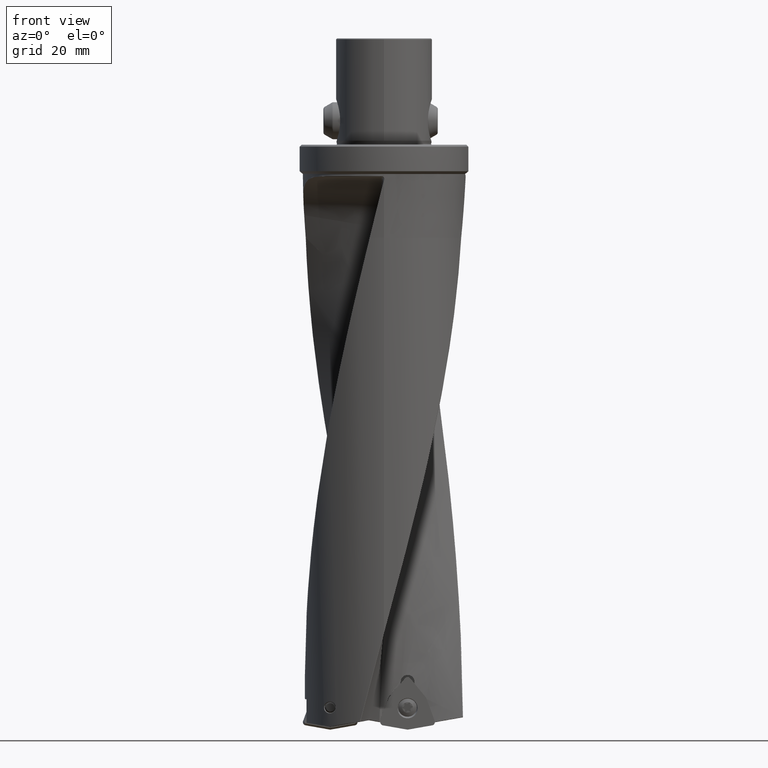
[diagram: clean part render]
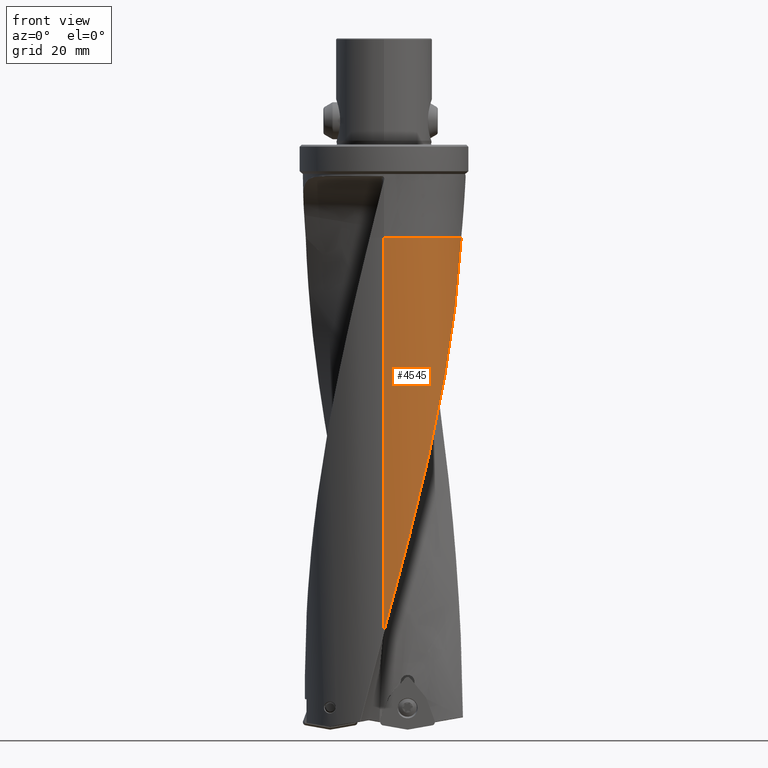
[diagram: same view with one face highlighted and labeled with its STEP entity id]
A machine part, front view. The second image highlights one B-rep face of the part: STEP entity #4545.
In plain terms, the highlighted cylindrical surface (partial cylindrical patch) has radius 29.7375 mm, axis along (-0, -0, 1).
Its self-contained STEP definition (entity closure, byte-faithful):
#2795=VERTEX_POINT('',#6438);
#3581=EDGE_CURVE('',#5069,#2795,#7304,.T.);
#3627=VERTEX_POINT('NONE',#7354);
#3789=EDGE_CURVE('NONE',#2795,#3627,#7536,.F.);
#4545=ADVANCED_FACE('NONE',(#8384),#8385,.T.);
#4779=EDGE_CURVE('NONE',#3627,#5069,#8638,.T.);
#5069=VERTEX_POINT('',#8953);
#6438=CARTESIAN_POINT('',(-2.07640241021142E-013,-29.7375,-182.909381658878));
#7304=LINE('',#34133,#34134);
#7354=CARTESIAN_POINT('',(29.0226496763432,-6.48110422800421,-35.004216874551));
#7536=B_SPLINE_CURVE_WITH_KNOTS('',3,(#34979,#34980,#34981,#34982,#34983,#34984,#34985,#34986,#34987,#34988,#34989,#34990,#34991,#34992,#34993,#34994,#34995,#34996,#34997,#34998,#34999,#35000,#35001,#35002,#35003,#35004,#35005,#35006),.UNSPECIFIED.,.F.,.F.,(4,3,3,3,3,3,3,3,3,4),(0.0,0.0138801741994209,0.0277587662375939,0.105136877169776,0.2980105920843,0.48115427402022,0.667697862652595,0.844387294639321,0.983483297206192,1.0),.UNSPECIFIED.);
#8384=FACE_OUTER_BOUND('',#46445,.T.);
#8385=CYLINDRICAL_SURFACE('',#46446,29.7375);
#8638=CIRCLE('',#48356,29.7375);
#8953=CARTESIAN_POINT('',(3.6731369063572E-015,-29.7375,-35.004216874551));
#34133=CARTESIAN_POINT('',(3.6731369063572E-015,-29.7375,-126.911254649603));
#34134=VECTOR('',#54816,1.0);
#34979=CARTESIAN_POINT('',(29.0226496763432,-6.48110422800421,-35.004216874551));
#34980=CARTESIAN_POINT('',(28.9727246311949,-6.70467062108196,-35.8453590138589));
#34981=CARTESIAN_POINT('',(28.9206935896616,-6.92564166909692,-36.6870670148202));
#34982=CARTESIAN_POINT('',(28.8658212213104,-7.14725621965151,-37.5284191710098));
#34983=CARTESIAN_POINT('',(28.810955107703,-7.36884550899909,-38.3696754238802));
#34984=CARTESIAN_POINT('',(28.7532108164954,-7.59106844914984,-39.2105759130977));
#34985=CARTESIAN_POINT('',(28.6929906194802,-7.81224651175452,-40.0515737687937));
#34986=CARTESIAN_POINT('',(28.3572414979423,-9.04539326157738,-44.7404373936328));
#34987=CARTESIAN_POINT('',(27.942652169178,-10.2545528940768,-49.4299614346731));
#34988=CARTESIAN_POINT('',(27.4520012520721,-11.4326958109726,-54.119317705414));
#34989=CARTESIAN_POINT('',(26.2289982093722,-14.3693506135315,-65.8080699067724));
#34990=CARTESIAN_POINT('',(24.5326669599655,-17.1043603262795,-77.4977822135652));
#34991=CARTESIAN_POINT('',(22.4492533655695,-19.5025621285631,-89.1877188627222));
#34992=CARTESIAN_POINT('',(20.4709431699986,-21.7797801947482,-100.28792523596));
#34993=CARTESIAN_POINT('',(18.1445632851784,-23.7523357584174,-111.388460854758));
#34994=CARTESIAN_POINT('',(15.5778282447737,-25.330814701196,-122.489554951026));
#34995=CARTESIAN_POINT('',(12.9634439512818,-26.9385967630943,-133.796731418016));
#34996=CARTESIAN_POINT('',(10.0991113858294,-28.1379591922356,-145.10406254381));
#34997=CARTESIAN_POINT('',(7.11950095200584,-28.8726793430119,-156.411330514019));
#34998=CARTESIAN_POINT('',(4.29728830479704,-29.5685879350016,-167.12129256431));
#34999=CARTESIAN_POINT('',(1.37455495074917,-29.8475085134538,-177.831765350085));
#35000=CARTESIAN_POINT('',(-1.52750970131436,-29.6982427150562,-188.541957044845));
#35001=CARTESIAN_POINT('',(-3.81211488541491,-29.580735540781,-196.973388595194));
#35002=CARTESIAN_POINT('',(-6.08402024650175,-29.1983040435064,-205.404540471183));
#35003=CARTESIAN_POINT('',(-8.28200192684598,-28.5609409917411,-213.835728202154));
#35004=CARTESIAN_POINT('',(-8.54299727890886,-28.4852584710109,-214.83687431262));
#35005=CARTESIAN_POINT('',(-8.80296006484087,-28.4059966564476,-215.838020605773));
#35006=CARTESIAN_POINT('',(-9.06178153243484,-28.3231887630687,-216.839165333545));
#46445=EDGE_LOOP('',(#56125,#56126,#56127));
#46446=AXIS2_PLACEMENT_3D('',#56128,#56129,#56130);
#48356=AXIS2_PLACEMENT_3D('',#56398,#56399,#56400);
#54816=DIRECTION('',(0.0,0.0,-1.0));
#56125=ORIENTED_EDGE('',*,*,#3581,.T.);
#56126=ORIENTED_EDGE('',*,*,#3789,.T.);
#56127=ORIENTED_EDGE('',*,*,#4779,.T.);
#56128=CARTESIAN_POINT('',(0.0,0.0,19.1374973745012));
#56129=DIRECTION('',(-0.0,-0.0,1.0));
#56130=DIRECTION('',(0.0,1.0,0.0));
#56398=CARTESIAN_POINT('',(0.0,0.0,-35.004216874551));
#56399=DIRECTION('',(0.0,0.0,-1.0));
#56400=DIRECTION('',(0.0,1.0,0.0));